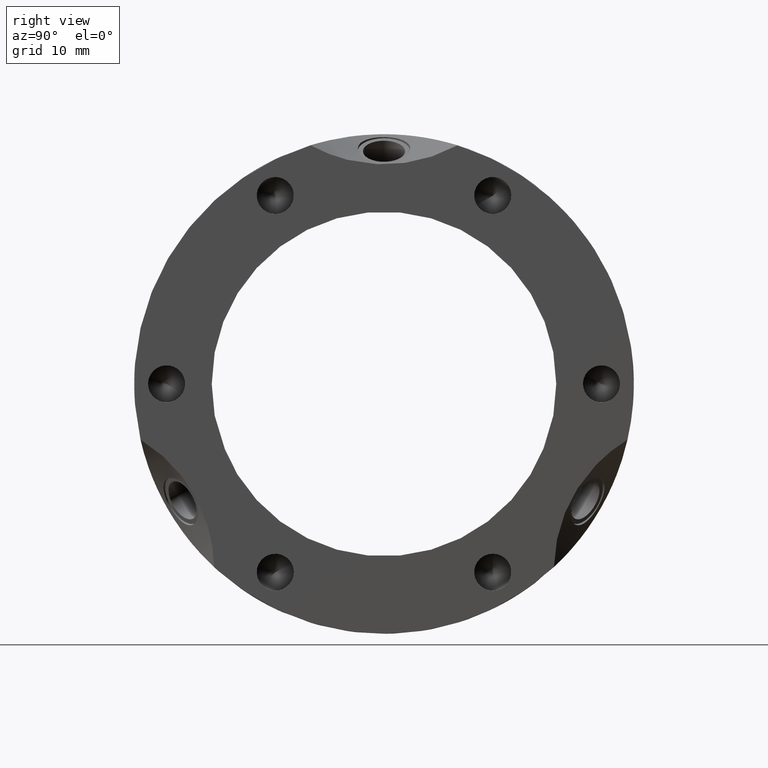
[diagram: clean part render]
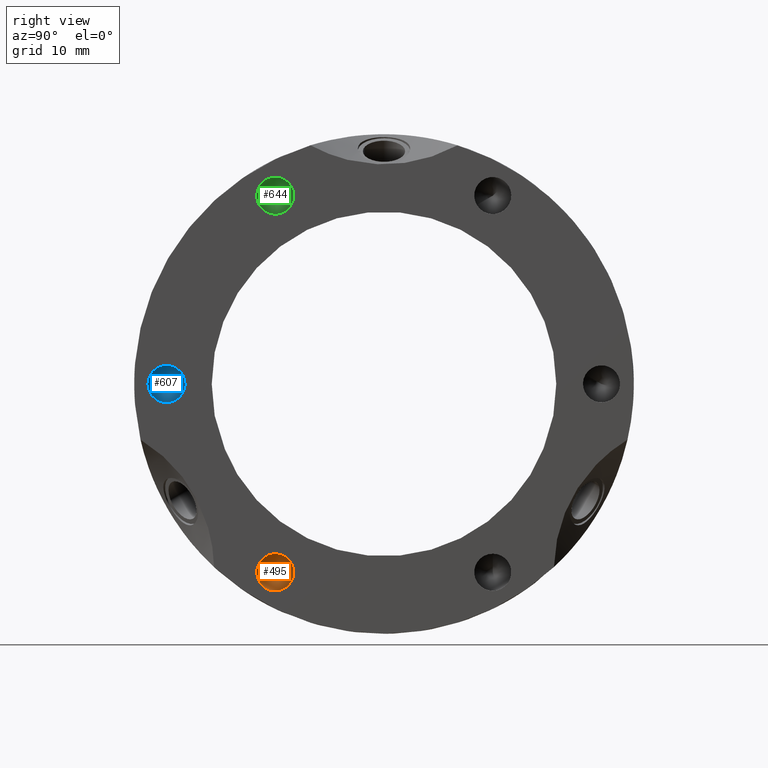
[diagram: same view with three faces highlighted in distinct colors, each labeled with its STEP entity id]
A machine part, right view with three faces highlighted in distinct colors.
Their STEP definitions:

[orange] entity #495 — the highlighted conical surface has half-angle 59 deg.
#479=CARTESIAN_POINT('',(15.854074834545365,-12.625000000000002,-21.867141445557088));
#480=DIRECTION('',(1.0,0.0,0.0));
#481=DIRECTION('',(0.0,0.866025403784439,0.5));
#482=AXIS2_PLACEMENT_3D('',#479,#480,#481);
#483=CONICAL_SURFACE('',#482,1.075,59.000000000000021);
#484=CARTESIAN_POINT('',(16.499999999999993,-10.763045381863456,-20.792141445557085));
#485=VERTEX_POINT('',#484);
#486=CARTESIAN_POINT('',(16.499999999999993,-12.625000000000002,-21.867141445557088));
#487=DIRECTION('',(1.0,0.0,0.0));
#488=DIRECTION('',(0.0,0.866025403784439,0.5));
#489=AXIS2_PLACEMENT_3D('',#486,#487,#488);
#490=CIRCLE('',#489,2.15);
#491=EDGE_CURVE('',#485,#485,#490,.T.);
#492=ORIENTED_EDGE('',*,*,#491,.T.);
#493=EDGE_LOOP('',(#492));
#494=FACE_OUTER_BOUND('',#493,.T.);
#495=ADVANCED_FACE('',(#494),#483,.F.);

[blue] entity #607 — the highlighted conical surface has half-angle 59 deg.
#591=CARTESIAN_POINT('',(15.854074834545365,-25.250000000000014,-8.881784E-015));
#592=DIRECTION('',(1.0,0.0,0.0));
#593=DIRECTION('',(0.0,0.866025403784439,-0.5));
#594=AXIS2_PLACEMENT_3D('',#591,#592,#593);
#595=CONICAL_SURFACE('',#594,1.075,59.000000000000021);
#596=CARTESIAN_POINT('',(16.499999999999993,-23.388045381863467,-1.075000000000009));
#597=VERTEX_POINT('',#596);
#598=CARTESIAN_POINT('',(16.499999999999993,-25.250000000000014,-8.881784E-015));
#599=DIRECTION('',(1.0,0.0,0.0));
#600=DIRECTION('',(0.0,0.866025403784439,-0.5));
#601=AXIS2_PLACEMENT_3D('',#598,#599,#600);
#602=CIRCLE('',#601,2.15);
#603=EDGE_CURVE('',#597,#597,#602,.T.);
#604=ORIENTED_EDGE('',*,*,#603,.T.);
#605=EDGE_LOOP('',(#604));
#606=FACE_OUTER_BOUND('',#605,.T.);
#607=ADVANCED_FACE('',(#606),#595,.F.);

[green] entity #644 — the highlighted conical surface has half-angle 59 deg.
#628=CARTESIAN_POINT('',(15.854074834545365,-12.625000000000018,21.867141445557081));
#629=DIRECTION('',(1.0,0.0,0.0));
#630=DIRECTION('',(0.0,0.0,-1.0));
#631=AXIS2_PLACEMENT_3D('',#628,#629,#630);
#632=CONICAL_SURFACE('',#631,1.075,59.000000000000021);
#633=CARTESIAN_POINT('',(16.499999999999993,-12.625000000000018,19.717141445557079));
#634=VERTEX_POINT('',#633);
#635=CARTESIAN_POINT('',(16.499999999999993,-12.625000000000018,21.867141445557081));
#636=DIRECTION('',(1.0,0.0,0.0));
#637=DIRECTION('',(0.0,0.0,-1.0));
#638=AXIS2_PLACEMENT_3D('',#635,#636,#637);
#639=CIRCLE('',#638,2.15);
#640=EDGE_CURVE('',#634,#634,#639,.T.);
#641=ORIENTED_EDGE('',*,*,#640,.T.);
#642=EDGE_LOOP('',(#641));
#643=FACE_OUTER_BOUND('',#642,.T.);
#644=ADVANCED_FACE('',(#643),#632,.F.);